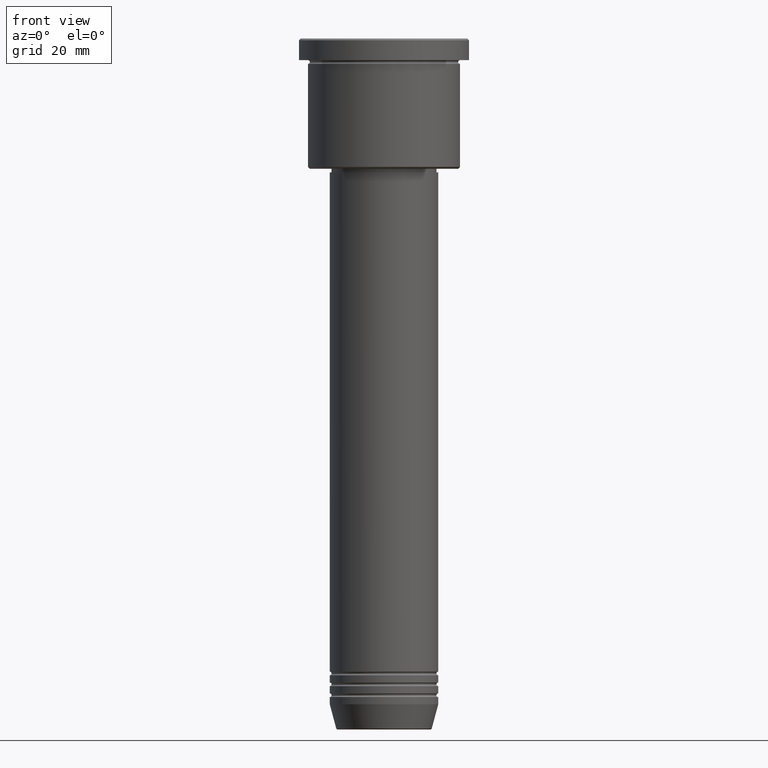
[diagram: clean part render]
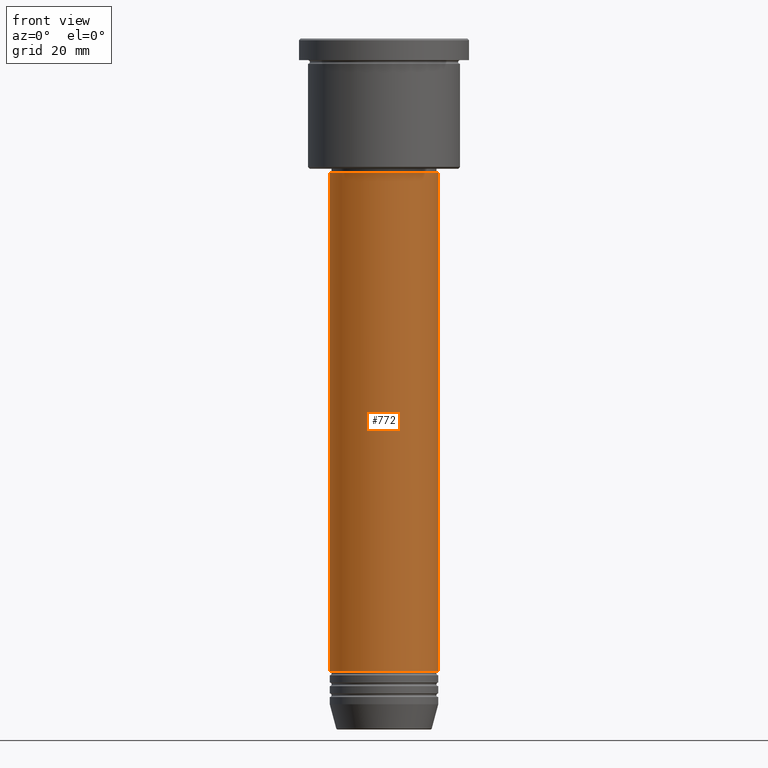
[diagram: same view with one face highlighted and labeled with its STEP entity id]
A machine part, front view. The second image highlights one B-rep face of the part: STEP entity #772.
In plain terms, the highlighted cylindrical surface (partial cylindrical patch) has radius 15 mm, axis along (-0, -0, 1).
Its self-contained STEP definition (entity closure, byte-faithful):
#3 = AXIS2_PLACEMENT_3D ( 'NONE', #208, #413, #860 ) ;
#34 = EDGE_CURVE ( 'NONE', #785, #499, #372, .T. ) ;
#47 = FACE_OUTER_BOUND ( 'NONE', #366, .T. ) ;
#53 = CARTESIAN_POINT ( 'NONE',  ( -15.00000000000000000, 1.836970198721029589E-15, -175.0000000000000000 ) ) ;
#144 = DIRECTION ( 'NONE',  ( 1.000000000000000000, 0.000000000000000000, 0.000000000000000000 ) ) ;
#158 = VECTOR ( 'NONE', #907, 1000.000000000000000 ) ;
#162 = CARTESIAN_POINT ( 'NONE',  ( 15.00000000000000000, 0.000000000000000000, 0.000000000000000000 ) ) ;
#208 = CARTESIAN_POINT ( 'NONE',  ( 0.000000000000000000, 0.000000000000000000, -175.0000000000000000 ) ) ;
#219 = CIRCLE ( 'NONE', #831, 15.00000000000000000 ) ;
#253 = DIRECTION ( 'NONE',  ( -0.000000000000000000, -0.000000000000000000, 1.000000000000000000 ) ) ;
#289 = LINE ( 'NONE', #162, #158 ) ;
#366 = EDGE_LOOP ( 'NONE', ( #996, #379, #1065, #1023 ) ) ;
#372 = CIRCLE ( 'NONE', #3, 15.00000000000000000 ) ;
#379 = ORIENTED_EDGE ( 'NONE', *, *, #34, .T. ) ;
#413 = DIRECTION ( 'NONE',  ( -0.000000000000000000, -0.000000000000000000, 1.000000000000000000 ) ) ;
#417 = DIRECTION ( 'NONE',  ( -0.000000000000000000, -0.000000000000000000, 1.000000000000000000 ) ) ;
#430 = VERTEX_POINT ( 'NONE', #906 ) ;
#480 = CARTESIAN_POINT ( 'NONE',  ( 15.00000000000000000, 0.000000000000000000, -175.0000000000000000 ) ) ;
#499 = VERTEX_POINT ( 'NONE', #480 ) ;
#605 = VECTOR ( 'NONE', #1158, 1000.000000000000000 ) ;
#688 = EDGE_CURVE ( 'NONE', #785, #1153, #1162, .T. ) ;
#717 = CARTESIAN_POINT ( 'NONE',  ( -15.00000000000000000, 1.836970198721029589E-15, 0.000000000000000000 ) ) ;
#772 = ADVANCED_FACE ( 'NONE', ( #47 ), #784, .T. ) ;
#784 = CYLINDRICAL_SURFACE ( 'NONE', #959, 15.00000000000000000 ) ;
#785 = VERTEX_POINT ( 'NONE', #53 ) ;
#788 = CARTESIAN_POINT ( 'NONE',  ( -15.00000000000000000, 1.836970198721029589E-15, -37.00000000000001421 ) ) ;
#831 = AXIS2_PLACEMENT_3D ( 'NONE', #1026, #417, #144 ) ;
#860 = DIRECTION ( 'NONE',  ( 1.000000000000000000, 0.000000000000000000, 0.000000000000000000 ) ) ;
#879 = EDGE_CURVE ( 'NONE', #499, #430, #289, .T. ) ;
#906 = CARTESIAN_POINT ( 'NONE',  ( 15.00000000000000000, 0.000000000000000000, -37.00000000000001421 ) ) ;
#907 = DIRECTION ( 'NONE',  ( -0.000000000000000000, -0.000000000000000000, 1.000000000000000000 ) ) ;
#959 = AXIS2_PLACEMENT_3D ( 'NONE', #1066, #253, #1142 ) ;
#996 = ORIENTED_EDGE ( 'NONE', *, *, #688, .F. ) ;
#1023 = ORIENTED_EDGE ( 'NONE', *, *, #1106, .F. ) ;
#1026 = CARTESIAN_POINT ( 'NONE',  ( 0.000000000000000000, 0.000000000000000000, -37.00000000000001421 ) ) ;
#1065 = ORIENTED_EDGE ( 'NONE', *, *, #879, .T. ) ;
#1066 = CARTESIAN_POINT ( 'NONE',  ( 0.000000000000000000, 0.000000000000000000, 0.000000000000000000 ) ) ;
#1106 = EDGE_CURVE ( 'NONE', #1153, #430, #219, .T. ) ;
#1142 = DIRECTION ( 'NONE',  ( 1.000000000000000000, 0.000000000000000000, 0.000000000000000000 ) ) ;
#1153 = VERTEX_POINT ( 'NONE', #788 ) ;
#1158 = DIRECTION ( 'NONE',  ( -0.000000000000000000, -0.000000000000000000, 1.000000000000000000 ) ) ;
#1162 = LINE ( 'NONE', #717, #605 ) ;